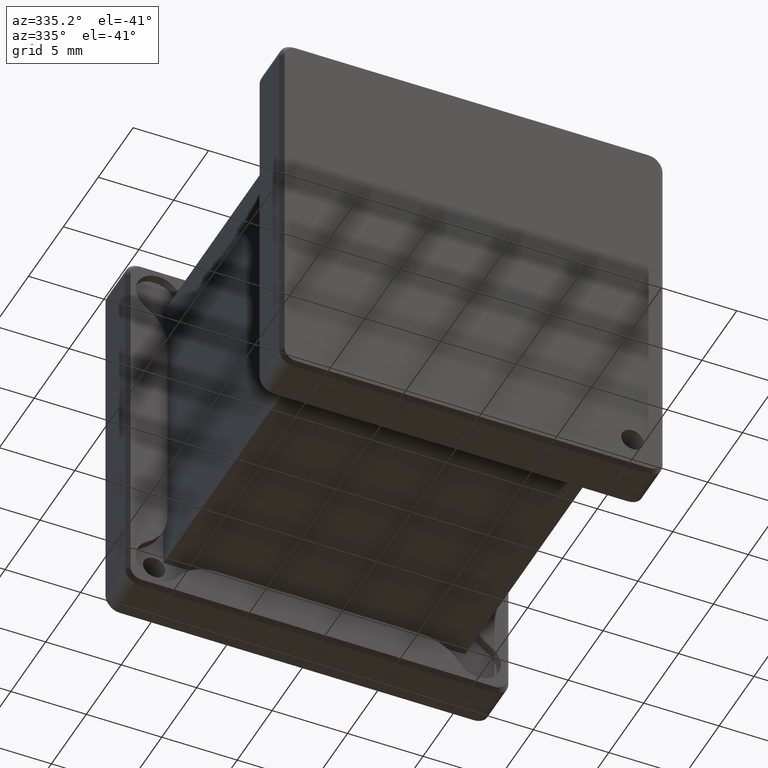
[diagram: clean part render]
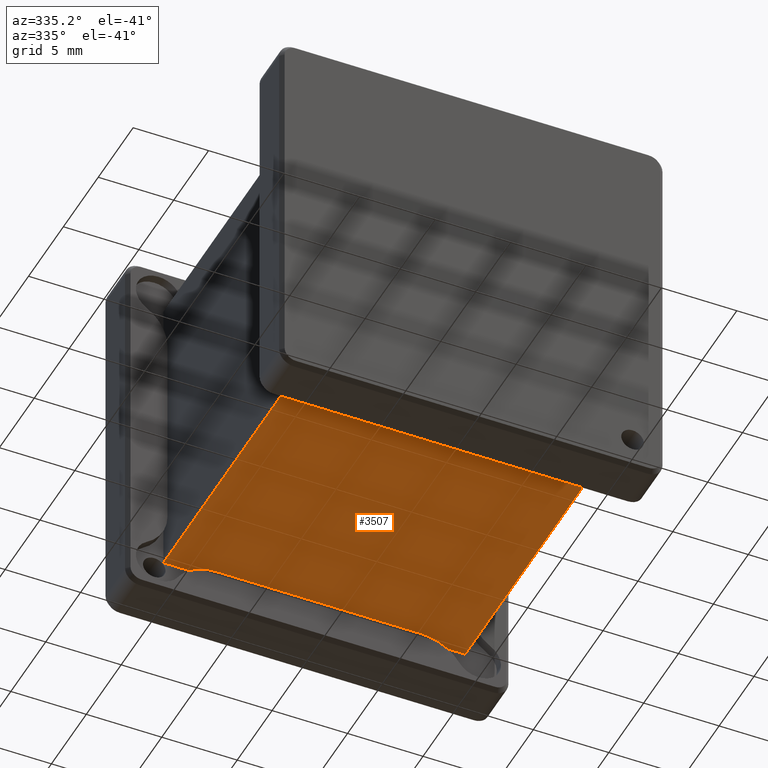
[diagram: same view with one face highlighted and labeled with its STEP entity id]
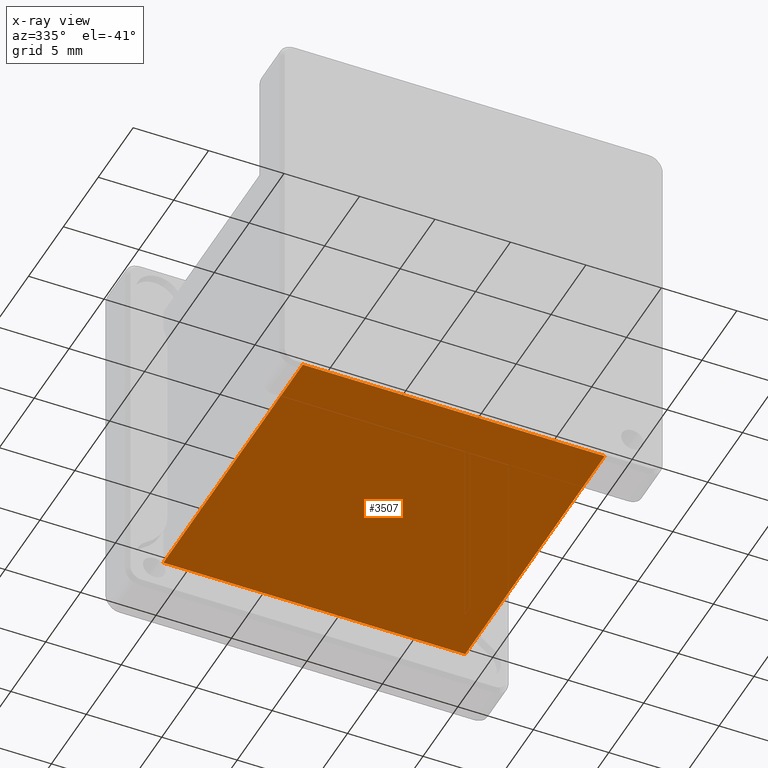
[diagram: x-ray of the same camera — body ghosted, the highlighted face saturated]
A machine part, auxiliary view. The second image highlights one B-rep face of the part: STEP entity #3507.
The next image is the same camera in x-ray: the body ghosted, the highlighted face saturated — about 0% of this face is hidden behind the body in this view.
In plain terms, the highlighted planar face has unit normal (0, 0, 1).
Its self-contained STEP definition (entity closure, byte-faithful):
#230 = FACE_OUTER_BOUND ( 'NONE', #2418, .T. ) ;
#251 = VECTOR ( 'NONE', #1141, 1000.000000000000000 ) ;
#423 = ORIENTED_EDGE ( 'NONE', *, *, #2626, .F. ) ;
#451 = ORIENTED_EDGE ( 'NONE', *, *, #1627, .T. ) ;
#569 = LINE ( 'NONE', #4055, #1072 ) ;
#637 = DIRECTION ( 'NONE',  ( 0.000000000000000000, 0.000000000000000000, 1.000000000000000000 ) ) ;
#682 = CARTESIAN_POINT ( 'NONE',  ( 10.00000000000000533, -1.049999999999998934, -10.00000000000000000 ) ) ;
#1032 = ORIENTED_EDGE ( 'NONE', *, *, #2325, .F. ) ;
#1072 = VECTOR ( 'NONE', #3743, 1000.000000000000000 ) ;
#1076 = LINE ( 'NONE', #3506, #4179 ) ;
#1141 = DIRECTION ( 'NONE',  ( -1.000000000000000000, -0.000000000000000000, -0.000000000000000000 ) ) ;
#1157 = VERTEX_POINT ( 'NONE', #2710 ) ;
#1166 = LINE ( 'NONE', #3181, #3156 ) ;
#1417 = EDGE_CURVE ( 'NONE', #4187, #3404, #1076, .T. ) ;
#1627 = EDGE_CURVE ( 'NONE', #3404, #1157, #569, .T. ) ;
#1851 = VERTEX_POINT ( 'NONE', #2566 ) ;
#1891 = DIRECTION ( 'NONE',  ( -0.000000000000000000, -1.000000000000000000, -0.000000000000000000 ) ) ;
#2232 = DIRECTION ( 'NONE',  ( 1.000000000000000000, 0.000000000000000000, -0.000000000000000000 ) ) ;
#2325 = EDGE_CURVE ( 'NONE', #1851, #1157, #1166, .T. ) ;
#2418 = EDGE_LOOP ( 'NONE', ( #451, #1032, #423, #2925 ) ) ;
#2566 = CARTESIAN_POINT ( 'NONE',  ( -9.999999999999994671, -1.049999999999998934, -10.00000000000000000 ) ) ;
#2626 = EDGE_CURVE ( 'NONE', #4187, #1851, #3703, .T. ) ;
#2710 = CARTESIAN_POINT ( 'NONE',  ( -9.999999999999994671, -21.05000000000000071, -10.00000000000000000 ) ) ;
#2736 = AXIS2_PLACEMENT_3D ( 'NONE', #3552, #637, #2232 ) ;
#2925 = ORIENTED_EDGE ( 'NONE', *, *, #1417, .T. ) ;
#3156 = VECTOR ( 'NONE', #3836, 1000.000000000000000 ) ;
#3181 = CARTESIAN_POINT ( 'NONE',  ( -9.999999999999994671, -1.049999999999998934, -10.00000000000000000 ) ) ;
#3404 = VERTEX_POINT ( 'NONE', #3706 ) ;
#3422 = CARTESIAN_POINT ( 'NONE',  ( -9.999999999999994671, -1.049999999999998934, -10.00000000000000000 ) ) ;
#3434 = PLANE ( 'NONE',  #2736 ) ;
#3506 = CARTESIAN_POINT ( 'NONE',  ( 10.00000000000000533, -1.049999999999998934, -10.00000000000000000 ) ) ;
#3507 = ADVANCED_FACE ( 'NONE', ( #230 ), #3434, .F. ) ;
#3552 = CARTESIAN_POINT ( 'NONE',  ( -9.999999999999994671, -1.049999999999998934, -10.00000000000000000 ) ) ;
#3703 = LINE ( 'NONE', #3422, #251 ) ;
#3706 = CARTESIAN_POINT ( 'NONE',  ( 10.00000000000000533, -21.05000000000000071, -10.00000000000000000 ) ) ;
#3743 = DIRECTION ( 'NONE',  ( -1.000000000000000000, -0.000000000000000000, -0.000000000000000000 ) ) ;
#3836 = DIRECTION ( 'NONE',  ( -0.000000000000000000, -1.000000000000000000, -0.000000000000000000 ) ) ;
#4055 = CARTESIAN_POINT ( 'NONE',  ( -9.999999999999994671, -21.05000000000000071, -10.00000000000000000 ) ) ;
#4179 = VECTOR ( 'NONE', #1891, 1000.000000000000000 ) ;
#4187 = VERTEX_POINT ( 'NONE', #682 ) ;